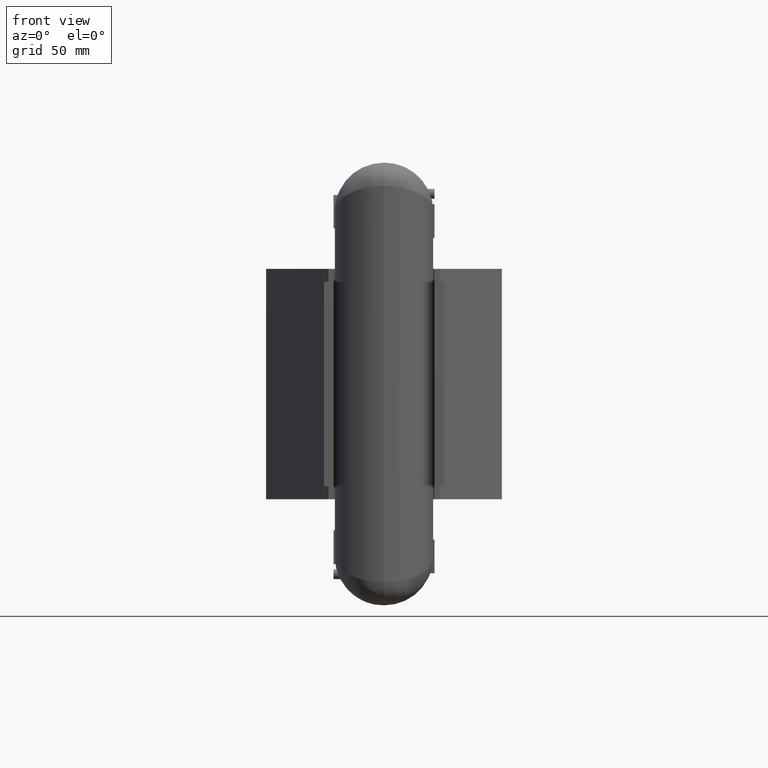
[diagram: clean part render]
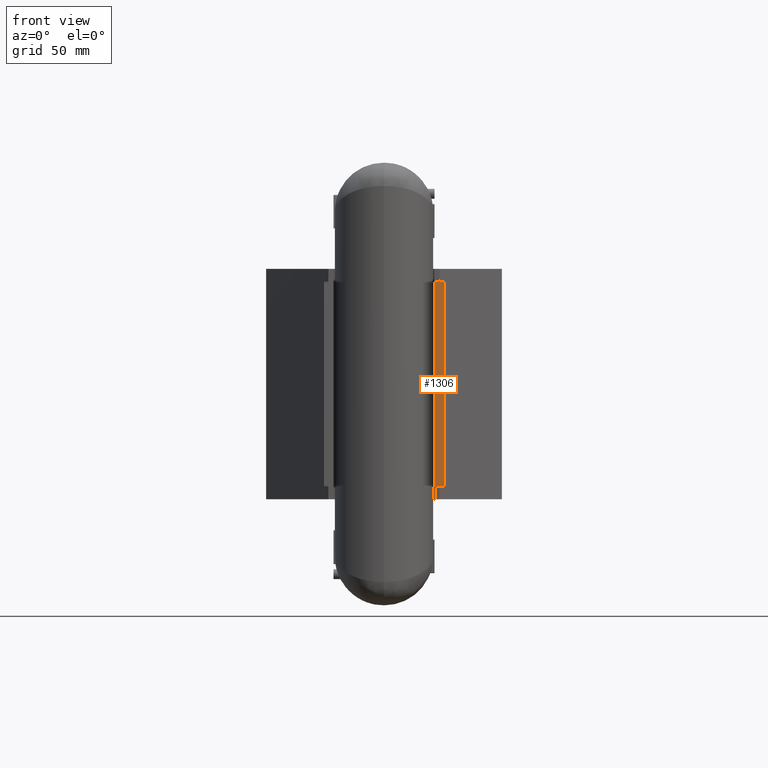
[diagram: same view with one face highlighted and labeled with its STEP entity id]
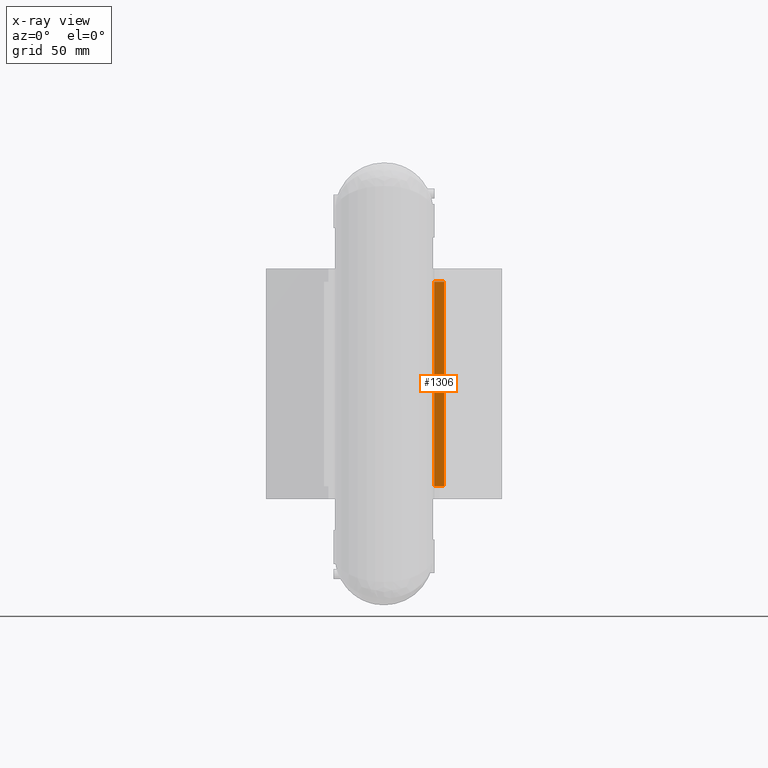
[diagram: x-ray of the same camera — body ghosted, the highlighted face saturated]
A machine part, front view. The second image highlights one B-rep face of the part: STEP entity #1306.
The next image is the same camera in x-ray: the body ghosted, the highlighted face saturated — about 0% of this face is hidden behind the body in this view.
In plain terms, the highlighted planar face has unit normal (0, -1, 0).
Its self-contained STEP definition (entity closure, byte-faithful):
#1059=PLANE('',#9025);
#1306=ADVANCED_FACE('',(#1836),#1059,.T.);
#1836=FACE_OUTER_BOUND('',#2286,.T.);
#2286=EDGE_LOOP('',(#2926,#2927,#2928,#2929));
#2926=ORIENTED_EDGE('',*,*,#6417,.T.);
#2927=ORIENTED_EDGE('',*,*,#6422,.T.);
#2928=ORIENTED_EDGE('',*,*,#6421,.F.);
#2929=ORIENTED_EDGE('',*,*,#6423,.T.);
#5538=VERTEX_POINT('',#11289);
#5539=VERTEX_POINT('',#11291);
#5540=VERTEX_POINT('',#11295);
#5541=VERTEX_POINT('',#11297);
#6417=EDGE_CURVE('',#5539,#5538,#7729,.T.);
#6421=EDGE_CURVE('',#5541,#5540,#7733,.T.);
#6422=EDGE_CURVE('',#5538,#5540,#7734,.T.);
#6423=EDGE_CURVE('',#5541,#5539,#7735,.T.);
#7729=LINE('',#11290,#8307);
#7733=LINE('',#11298,#8311);
#7734=LINE('',#11300,#8312);
#7735=LINE('',#11301,#8313);
#8307=VECTOR('',#9558,1.);
#8311=VECTOR('',#9564,1.);
#8312=VECTOR('',#9567,1.);
#8313=VECTOR('',#9568,1.);
#9025=AXIS2_PLACEMENT_3D('',#11302,#9569,#9570);
#9558=DIRECTION('',(1.,3.67685954147258E-16,0.));
#9564=DIRECTION('',(1.,3.67685954147258E-16,0.));
#9567=DIRECTION('',(0.,0.,1.));
#9568=DIRECTION('',(0.,0.,-1.));
#9569=DIRECTION('',(3.67685954147258E-16,-1.,0.));
#9570=DIRECTION('',(1.,3.67761376907083E-16,0.));
#11289=CARTESIAN_POINT('',(23.1781992623546,1.99999999999999,-39.5));
#11290=CARTESIAN_POINT('',(46.,2.,-39.5));
#11291=CARTESIAN_POINT('',(19.5,2.,-39.5));
#11295=CARTESIAN_POINT('',(23.1781992623546,1.99999999999999,39.5));
#11297=CARTESIAN_POINT('',(19.5,1.99999999999999,39.5));
#11298=CARTESIAN_POINT('',(46.,2.,39.5));
#11300=CARTESIAN_POINT('',(23.1781992623546,1.99999999999999,39.5));
#11301=CARTESIAN_POINT('',(19.5,1.99999999999999,44.5));
#11302=CARTESIAN_POINT('',(46.,2.,39.5));